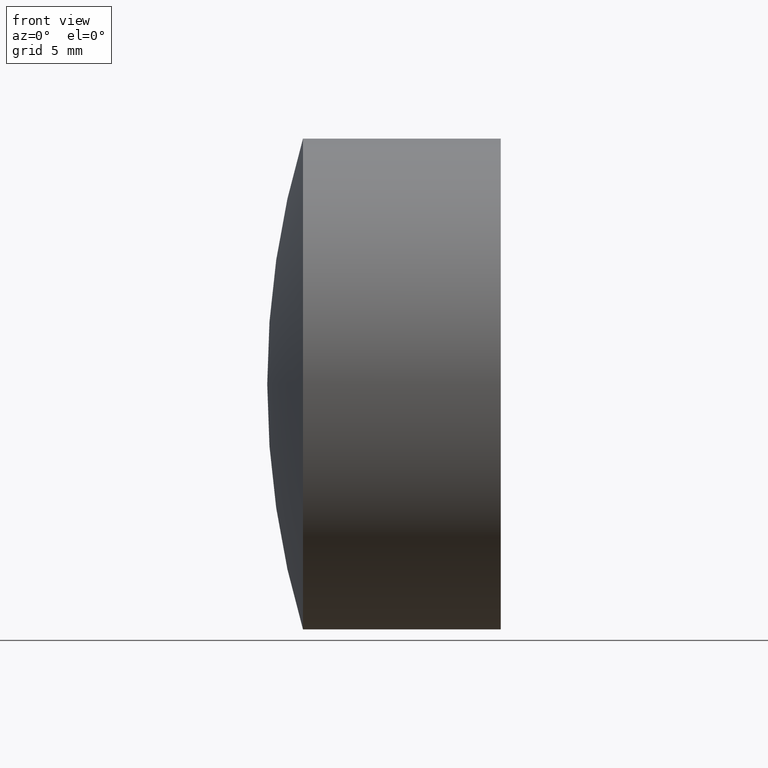
[diagram: clean part render]
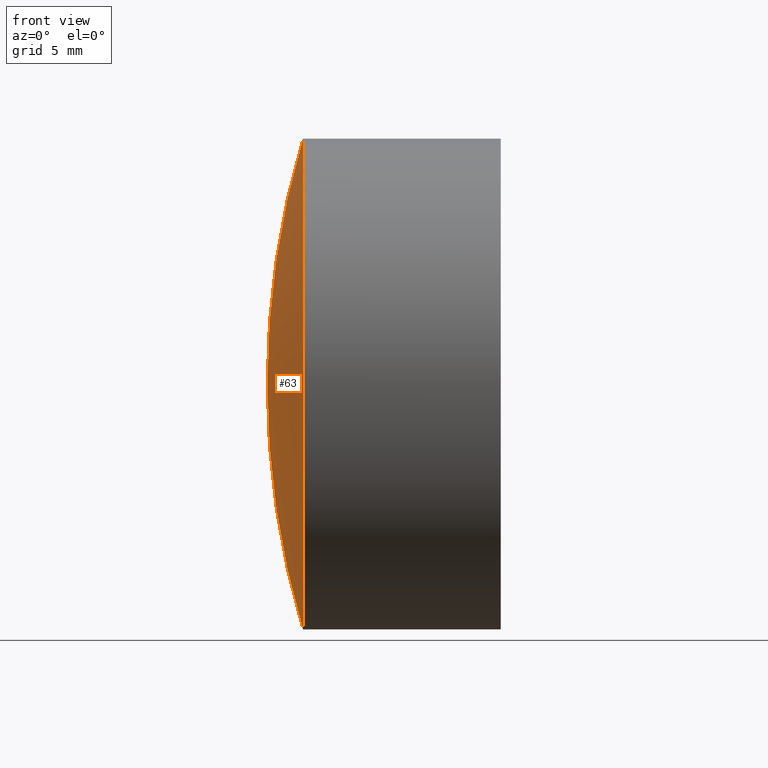
[diagram: same view with one face highlighted and labeled with its STEP entity id]
A machine part, front view. The second image highlights one B-rep face of the part: STEP entity #63.
In plain terms, the highlighted spherical surface has radius 44.5 mm.
Its self-contained STEP definition (entity closure, byte-faithful):
#6 = EDGE_CURVE ( 'NONE', #75, #133, #320, .T. ) ;
#23 = CARTESIAN_POINT ( 'NONE',  ( 313.5157627605192400, -1.555301434917138800E-015, 12.70000000000000600 ) ) ;
#26 = CIRCLE ( 'NONE', #294, 12.70000000000000600 ) ;
#35 = DIRECTION ( 'NONE',  ( -1.000000000000000000, -0.0000000000000000000, -0.0000000000000000000 ) ) ;
#55 = DIRECTION ( 'NONE',  ( -0.0000000000000000000, -1.000000000000000000, -0.0000000000000000000 ) ) ;
#57 = EDGE_LOOP ( 'NONE', ( #313, #137, #128 ) ) ;
#62 = SPHERICAL_SURFACE ( 'NONE', #189, 44.50000000000002800 ) ;
#63 = ADVANCED_FACE ( 'NONE', ( #123 ), #62, .T. ) ;
#65 = DIRECTION ( 'NONE',  ( 0.0000000000000000000, 0.0000000000000000000, 1.000000000000000000 ) ) ;
#70 = VERTEX_POINT ( 'NONE', #23 ) ;
#73 = DIRECTION ( 'NONE',  ( 0.0000000000000000000, 1.224646799147353200E-016, -1.000000000000000000 ) ) ;
#75 = VERTEX_POINT ( 'NONE', #152 ) ;
#78 = EDGE_CURVE ( 'NONE', #75, #70, #26, .T. ) ;
#80 = EDGE_CURVE ( 'NONE', #70, #133, #255, .T. ) ;
#95 = DIRECTION ( 'NONE',  ( 0.0000000000000000000, -1.000000000000000000, -1.224646799147353200E-016 ) ) ;
#115 = CARTESIAN_POINT ( 'NONE',  ( 311.6650300461362200, 0.0000000000000000000, 3.425649882819919400E-015 ) ) ;
#123 = FACE_OUTER_BOUND ( 'NONE', #57, .T. ) ;
#124 = CARTESIAN_POINT ( 'NONE',  ( 356.1650300461362800, 0.0000000000000000000, 6.150489010922782300E-015 ) ) ;
#128 = ORIENTED_EDGE ( 'NONE', *, *, #6, .F. ) ;
#129 = CARTESIAN_POINT ( 'NONE',  ( 356.1650300461362800, 0.0000000000000000000, 6.150489010922782300E-015 ) ) ;
#133 = VERTEX_POINT ( 'NONE', #115 ) ;
#137 = ORIENTED_EDGE ( 'NONE', *, *, #80, .T. ) ;
#152 = CARTESIAN_POINT ( 'NONE',  ( 313.5157627605192400, 0.0000000000000000000, -12.69999999999999900 ) ) ;
#157 = DIRECTION ( 'NONE',  ( 0.0000000000000000000, 0.0000000000000000000, 1.000000000000000000 ) ) ;
#164 = CARTESIAN_POINT ( 'NONE',  ( 313.5157627605192400, 0.0000000000000000000, 0.0000000000000000000 ) ) ;
#175 = AXIS2_PLACEMENT_3D ( 'NONE', #129, #322, #157 ) ;
#189 = AXIS2_PLACEMENT_3D ( 'NONE', #124, #55, #256 ) ;
#239 = AXIS2_PLACEMENT_3D ( 'NONE', #333, #95, #73 ) ;
#255 = CIRCLE ( 'NONE', #239, 44.50000000000002800 ) ;
#256 = DIRECTION ( 'NONE',  ( 0.0000000000000000000, 0.0000000000000000000, -1.000000000000000000 ) ) ;
#294 = AXIS2_PLACEMENT_3D ( 'NONE', #164, #35, #65 ) ;
#313 = ORIENTED_EDGE ( 'NONE', *, *, #78, .T. ) ;
#320 = CIRCLE ( 'NONE', #175, 44.50000000000002800 ) ;
#322 = DIRECTION ( 'NONE',  ( 0.0000000000000000000, 1.000000000000000000, -0.0000000000000000000 ) ) ;
#333 = CARTESIAN_POINT ( 'NONE',  ( 356.1650300461362800, 0.0000000000000000000, 6.150489010922782300E-015 ) ) ;